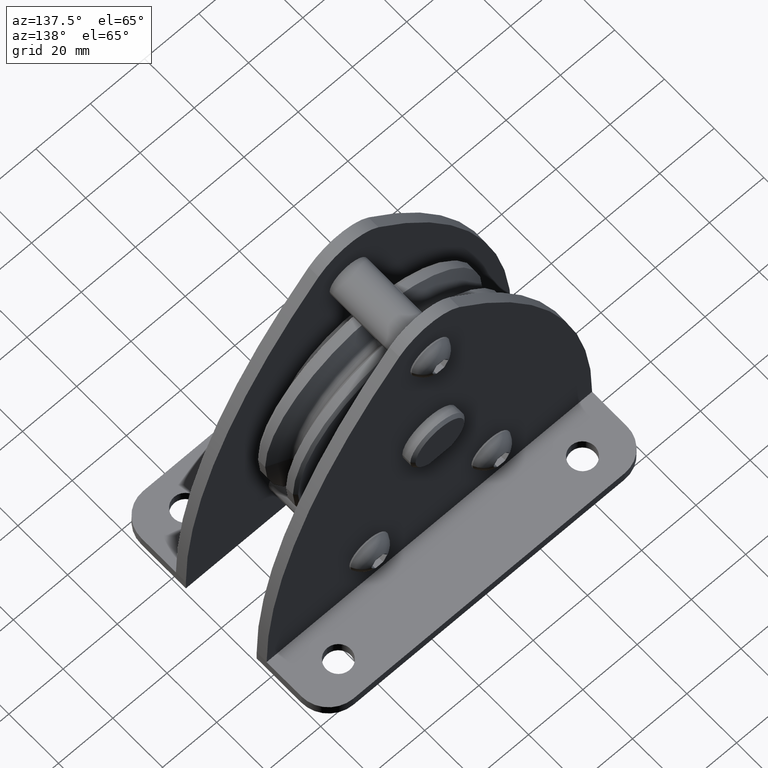
[diagram: clean part render]
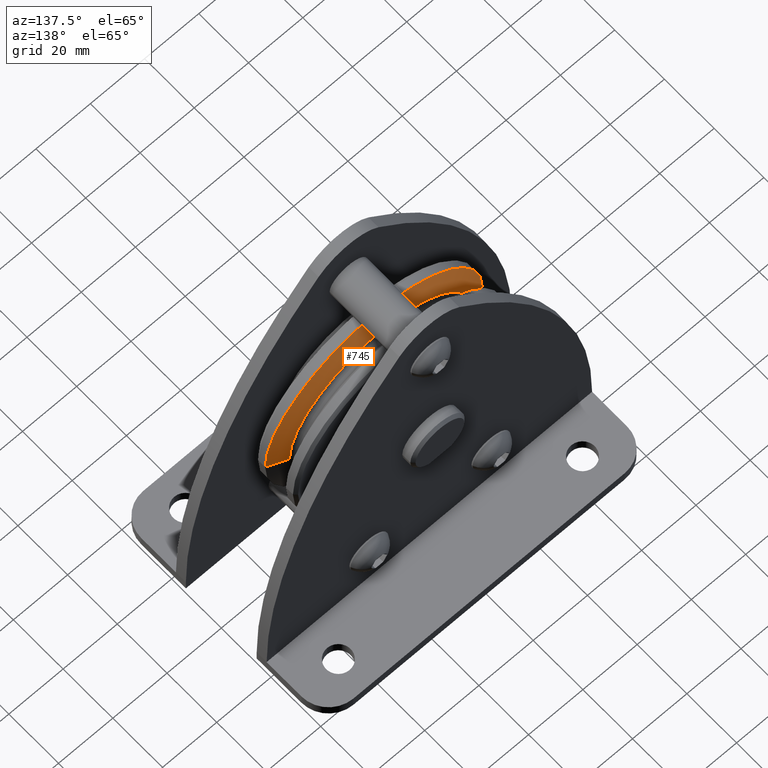
[diagram: same view with one face highlighted and labeled with its STEP entity id]
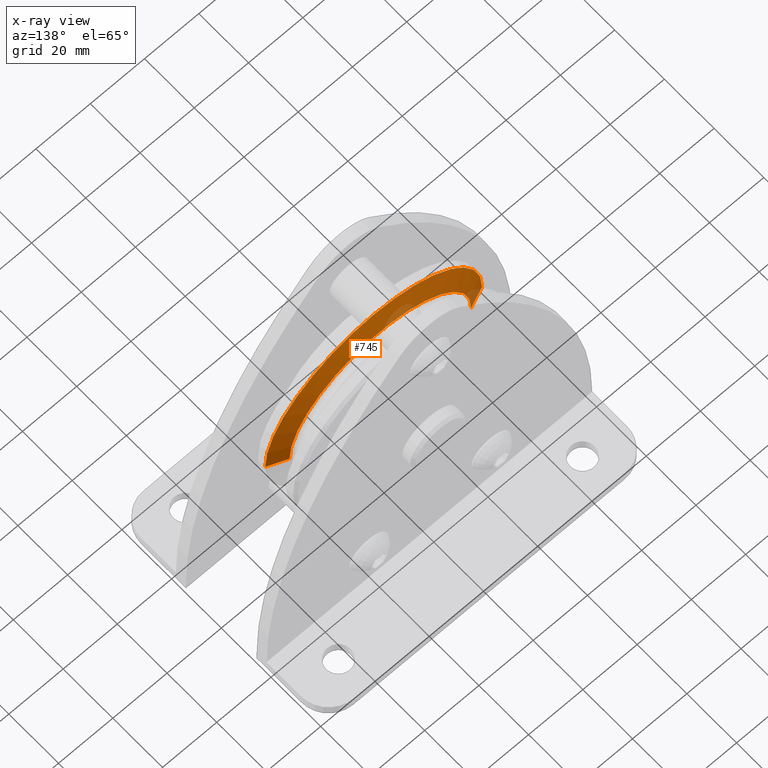
[diagram: x-ray of the same camera — body ghosted, the highlighted face saturated]
A machine part, auxiliary view. The second image highlights one B-rep face of the part: STEP entity #745.
The next image is the same camera in x-ray: the body ghosted, the highlighted face saturated — about 6% of this face is hidden behind the body in this view.
In plain terms, the highlighted conical surface has half-angle 67.5 deg.
Its self-contained STEP definition (entity closure, byte-faithful):
#745=ADVANCED_FACE('',(#2110),#2111,.T.);
#2110=FACE_OUTER_BOUND('',#4180,.T.);
#2111=CONICAL_SURFACE('',#4181,36.7438535,1.1780971904077);
#4180=EDGE_LOOP('',(#6423,#6424,#6425,#6426));
#4181=AXIS2_PLACEMENT_3D('',#6427,#6428,#6429);
#6423=ORIENTED_EDGE('',*,*,#12536,.F.);
#6424=ORIENTED_EDGE('',*,*,#12364,.T.);
#6425=ORIENTED_EDGE('',*,*,#12537,.F.);
#6426=ORIENTED_EDGE('',*,*,#12538,.F.);
#6427=CARTESIAN_POINT('',(0.0,-2.82694725,0.0));
#6428=DIRECTION('',(-0.0,-1.0,0.0));
#6429=DIRECTION('',(1.0,0.0,0.0));
#12364=EDGE_CURVE('',#14815,#14813,#14816,.T.);
#12536=EDGE_CURVE('',#14815,#15122,#15123,.T.);
#12537=EDGE_CURVE('',#15124,#14813,#15125,.T.);
#12538=EDGE_CURVE('',#15122,#15124,#15126,.T.);
#14813=VERTEX_POINT('',#18433);
#14815=VERTEX_POINT('',#18435);
#14816=CIRCLE('',#18436,33.487707);
#15122=VERTEX_POINT('',#19648);
#15123=LINE('',#19649,#19650);
#15124=VERTEX_POINT('',#19651);
#15125=LINE('',#19652,#19653);
#15126=CIRCLE('',#19654,40.0);
#18433=CARTESIAN_POINT('',(-33.487707,-1.478207,4.10106131883344E-015));
#18435=CARTESIAN_POINT('',(33.487707,-1.478207,0.0));
#18436=AXIS2_PLACEMENT_3D('',#26520,#26521,#26522);
#19648=CARTESIAN_POINT('',(40.0,-4.1756875,0.0));
#19649=CARTESIAN_POINT('',(36.7438535,-2.82694725,-4.49982425771142E-015));
#19650=VECTOR('',#26753,1.0);
#19651=CARTESIAN_POINT('',(-40.0,-4.1756875,4.89858719658941E-015));
#19652=CARTESIAN_POINT('',(-36.7438535,-2.82694725,4.49982425771143E-015));
#19653=VECTOR('',#26754,1.0);
#19654=AXIS2_PLACEMENT_3D('',#26755,#26756,#26757);
#26520=CARTESIAN_POINT('',(0.0,-1.478207,0.0));
#26521=DIRECTION('',(0.0,-1.0,0.0));
#26522=DIRECTION('',(1.0,0.0,0.0));
#26753=DIRECTION('',(0.923879511582911,-0.382683482890654,-1.13142608665783E-016));
#26754=DIRECTION('',(0.923879511582911,0.382683482890654,-1.13142608665783E-016));
#26755=CARTESIAN_POINT('',(0.0,-4.1756875,0.0));
#26756=DIRECTION('',(0.0,-1.0,0.0));
#26757=DIRECTION('',(1.0,0.0,0.0));